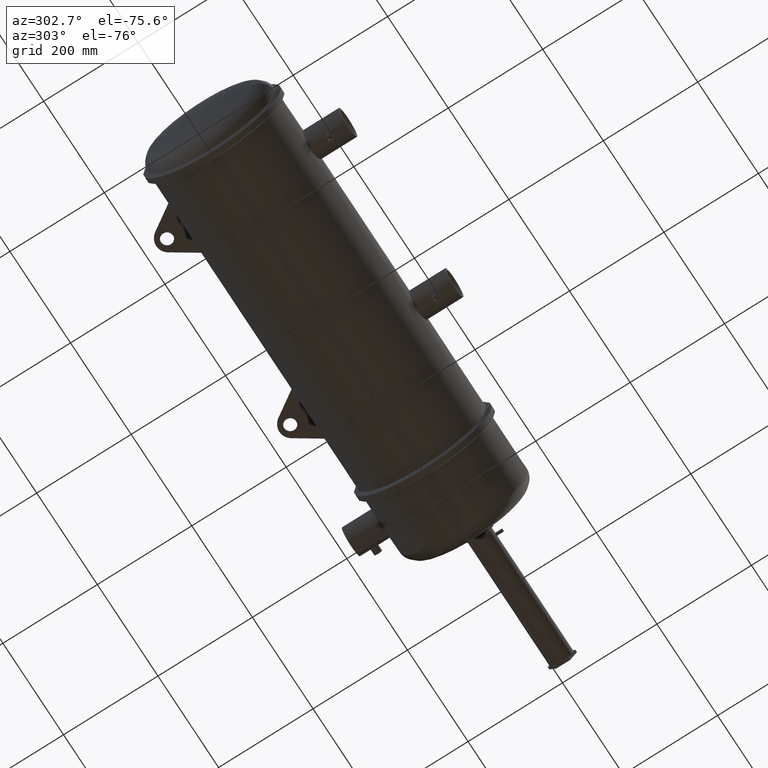
[diagram: clean part render]
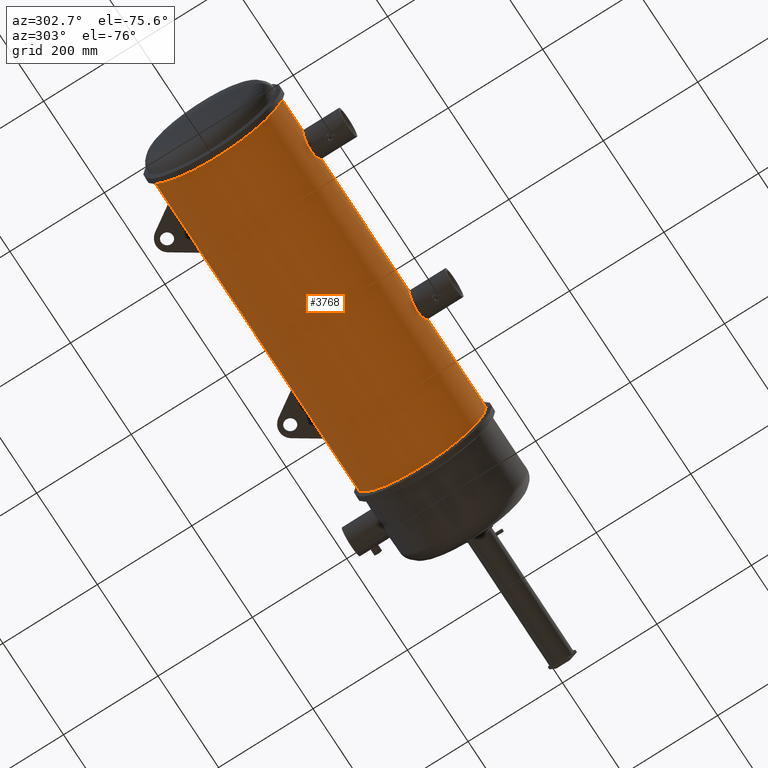
[diagram: same view with one face highlighted and labeled with its STEP entity id]
A machine part, auxiliary view. The second image highlights one B-rep face of the part: STEP entity #3768.
In plain terms, the highlighted cylindrical surface (partial cylindrical patch) has radius 136.439 mm, axis along (-1, 0, -0).
Its self-contained STEP definition (entity closure, byte-faithful):
#18 = CARTESIAN_POINT ( 'NONE',  ( 20.30267497385542400, -5.234978669850942600, -1.189228997308080100 ) ) ;
#26 = CARTESIAN_POINT ( 'NONE',  ( 5.330196405922591500, -5.330878267354915300, -0.6333811406929402700 ) ) ;
#42 = CARTESIAN_POINT ( 'NONE',  ( 6.035303101817143900, -5.241893412274290400, -1.158349098115867300 ) ) ;
#49 = DIRECTION ( 'NONE',  ( -1.000000000000000000, 1.127465836012422800E-020, -0.0000000000000000000 ) ) ;
#68 = VERTEX_POINT ( 'NONE', #412 ) ;
#69 = CARTESIAN_POINT ( 'NONE',  ( 4.463327892451215600, 5.374515423986700600, -0.08333991581731926800 ) ) ;
#153 = EDGE_CURVE ( 'NONE', #2178, #293, #2804, .T. ) ;
#167 = EDGE_CURVE ( 'NONE', #4083, #768, #3010, .T. ) ;
#203 = DIRECTION ( 'NONE',  ( 1.000000000000000000, -1.127465836012422800E-020, 0.0000000000000000000 ) ) ;
#293 = VERTEX_POINT ( 'NONE', #2851 ) ;
#294 = CARTESIAN_POINT ( 'NONE',  ( 19.76021090589704300, -5.246946594997296200, -1.135533866001857500 ) ) ;
#346 = CARTESIAN_POINT ( 'NONE',  ( 7.543312173937977100, -5.368251035232423100, -0.07934689548169746000 ) ) ;
#351 = CARTESIAN_POINT ( 'NONE',  ( 19.05636493610958100, -5.345471468201791900, -0.4944962946352758300 ) ) ;
#352 = CARTESIAN_POINT ( 'NONE',  ( 20.46364765338795200, 5.375000311993521700, 6.578344187407872600E-016 ) ) ;
#367 = CARTESIAN_POINT ( 'NONE',  ( 7.330533132380652200, -5.324870300496106000, -0.6814954920612604800 ) ) ;
#388 = CARTESIAN_POINT ( 'NONE',  ( 6.928274349975794200, -5.265413086649696000, -1.046100671700776400 ) ) ;
#412 = CARTESIAN_POINT ( 'NONE',  ( 24.71122289108931700, 5.375000311993521700, 6.578344187407872600E-016 ) ) ;
#418 = CARTESIAN_POINT ( 'NONE',  ( 21.13042735282109100, -5.324850754475957800, -0.6816483619526521000 ) ) ;
#422 = CARTESIAN_POINT ( 'NONE',  ( 5.310052556258611400, -5.334763962846635900, -0.5998794478264059000 ) ) ;
#434 = CARTESIAN_POINT ( 'NONE',  ( 20.87717697342599600, -5.283556944324895500, -0.9511561901910999800 ) ) ;
#439 = CARTESIAN_POINT ( 'NONE',  ( 5.557303486307052500, -5.292328878397583500, -0.9000362016154684900 ) ) ;
#441 = ORIENTED_EDGE ( 'NONE', *, *, #4150, .F. ) ;
#448 = VECTOR ( 'NONE', #4394, 39.37007874015748100 ) ;
#455 = CARTESIAN_POINT ( 'NONE',  ( 20.41869885264316100, -5.240255615862095900, -1.165645067144453200 ) ) ;
#487 = CARTESIAN_POINT ( 'NONE',  ( 4.463647653387963200, 5.375000311993521700, -0.04167136849551293000 ) ) ;
#491 = EDGE_CURVE ( 'NONE', #2388, #2630, #1920, .T. ) ;
#520 = CARTESIAN_POINT ( 'NONE',  ( 4.462688413873690900, 5.373545713627409600, -0.1250000000000000000 ) ) ;
#551 = CARTESIAN_POINT ( 'NONE',  ( 19.24435893855343600, -5.310070421630567400, -0.7904605361409938700 ) ) ;
#604 = B_SPLINE_CURVE_WITH_KNOTS ( 'NONE', 3,
 ( #2949, #3532, #818, #3985, #3492, #1266, #4900, #5370, #2656, #5829, #3119, #418, #1768, #4923, #2219, #5390, #783, #2692, #434, #883, #3592, #4041, #2239, #1790, #1341, #4060, #4491, #4945, #1323, #455, #5410, #18, #3157, #3612 ),
 .UNSPECIFIED., .F., .F.,
 ( 4, 2, 2, 2, 2, 2, 2, 2, 2, 2, 2, 2, 2, 2, 2, 2, 4 ),
 ( 0.0000000000000000000, 0.005960542230142185800, 0.008940813345213278700, 0.01043094890274887300, 0.01192108446028446700, 0.01788162669042668900, 0.01937176224796216200, 0.02086189780549763500, 0.02384216892056879900, 0.02980271115071111600, 0.03129284670824676600, 0.03278298226578241200, 0.03576325338085398200, 0.03874352449592555900, 0.04023366005346150400, 0.04172379561099744800, 0.04768433784114122600 ),
 .UNSPECIFIED. ) ;
#698 = DIRECTION ( 'NONE',  ( -1.000000000000000000, 1.127465836012422800E-020, -0.0000000000000000000 ) ) ;
#699 = AXIS2_PLACEMENT_3D ( 'NONE', #3014, #4775, #1647 ) ;
#756 = CARTESIAN_POINT ( 'NONE',  ( 20.46268841387367500, 5.373545713627407800, -0.1250000000000000000 ) ) ;
#766 = CARTESIAN_POINT ( 'NONE',  ( 21.34331217393797400, -5.368251035232424900, 0.0000000000000000000 ) ) ;
#768 = VERTEX_POINT ( 'NONE', #766 ) ;
#772 = CARTESIAN_POINT ( 'NONE',  ( 7.384828232467805600, -5.335004838788244700, -0.6002937999885240600 ) ) ;
#776 = CARTESIAN_POINT ( 'NONE',  ( 18.95152418166476600, -5.367823839679644500, -0.07830686946688783500 ) ) ;
#783 = CARTESIAN_POINT ( 'NONE',  ( 21.01989131365047600, -5.305490786052706300, -0.8191983656207001400 ) ) ;
#794 = EDGE_CURVE ( 'NONE', #2629, #5117, #1721, .T. ) ;
#795 = VECTOR ( 'NONE', #203, 39.37007874015748100 ) ;
#807 = CARTESIAN_POINT ( 'NONE',  ( 7.295845346061221400, -5.318571258674511500, -0.7290455716052651700 ) ) ;
#818 = CARTESIAN_POINT ( 'NONE',  ( 21.33549608641648000, -5.366494215406592400, -0.1573589102271542600 ) ) ;
#837 = EDGE_CURVE ( 'NONE', #768, #4770, #604, .T. ) ;
#883 = CARTESIAN_POINT ( 'NONE',  ( 20.79541310023561700, -5.273251761401556200, -1.005833010294777500 ) ) ;
#888 = LINE ( 'NONE', #3251, #5182 ) ;
#889 = CARTESIAN_POINT ( 'NONE',  ( 5.572120595253932300, -5.290139581269365000, -0.9128130151573573500 ) ) ;
#896 = VERTEX_POINT ( 'NONE', #5323 ) ;
#910 = CARTESIAN_POINT ( 'NONE',  ( 5.528220568262485200, -5.296740794863462800, -0.8736803168913048800 ) ) ;
#916 = CARTESIAN_POINT ( 'NONE',  ( 24.71122289108932100, 5.375000311993521700, -0.04167136849551387300 ) ) ;
#926 = CARTESIAN_POINT ( 'NONE',  ( 5.149611386536401300, -5.368251035232424900, 3.934038153631442900E-022 ) ) ;
#951 = CARTESIAN_POINT ( 'NONE',  ( 24.71122289108931700, 5.375000311993521700, 6.578344187407872600E-016 ) ) ;
#979 = ORIENTED_EDGE ( 'NONE', *, *, #4447, .T. ) ;
#1000 = EDGE_LOOP ( 'NONE', ( #441, #1827, #3459, #4711, #1696, #5780, #2126, #2956, #5636, #3528, #4389, #3077, #4613, #1238, #1557, #1744, #979 ) ) ;
#1043 = CARTESIAN_POINT ( 'NONE',  ( -0.0007269337269812082200, 5.375000311993521700, 6.578344187407872600E-016 ) ) ;
#1145 = CARTESIAN_POINT ( 'NONE',  ( 20.46364765338795500, 5.375000311993521700, -0.04167136849551293000 ) ) ;
#1147 = CARTESIAN_POINT ( 'NONE',  ( -0.0007269337269812082200, -5.368251035232424900, 0.0000000000000000000 ) ) ;
#1198 = CARTESIAN_POINT ( 'NONE',  ( 7.246288631352057600, -5.309910324303571000, -0.7901296684950678300 ) ) ;
#1208 = VERTEX_POINT ( 'NONE', #5467 ) ;
#1215 = CARTESIAN_POINT ( 'NONE',  ( 6.503113652984581900, -5.234992094269812500, -1.189170192166948200 ) ) ;
#1219 = CARTESIAN_POINT ( 'NONE',  ( 20.46332789245120100, 5.374515423986700600, -0.08333991581731926800 ) ) ;
#1224 = EDGE_CURVE ( 'NONE', #2630, #5117, #888, .T. ) ;
#1232 = CARTESIAN_POINT ( 'NONE',  ( 7.479666009584057900, -5.354425361592081600, -0.3856020242841821100 ) ) ;
#1238 = ORIENTED_EDGE ( 'NONE', *, *, #5369, .F. ) ;
#1266 = CARTESIAN_POINT ( 'NONE',  ( 21.28585846822836900, -5.355739564668230200, -0.3668973219569238200 ) ) ;
#1267 = VECTOR ( 'NONE', #2277, 39.37007874015748100 ) ;
#1274 = CARTESIAN_POINT ( 'NONE',  ( 19.01093943163520100, -5.354839818819743700, -0.3862169381962458100 ) ) ;
#1291 = CARTESIAN_POINT ( 'NONE',  ( 5.188244770120950200, -5.359754341280182500, -0.3116865172574833600 ) ) ;
#1320 =( BOUNDED_CURVE ( )  B_SPLINE_CURVE ( 3, ( #3621, #3670, #916, #951 ),
 .UNSPECIFIED., .F., .T. ) 
 B_SPLINE_CURVE_WITH_KNOTS ( ( 4, 4 ),
 ( 6.259912783765306800, 6.283185307179586200 ),
 .UNSPECIFIED. ) 
 CURVE ( )  GEOMETRIC_REPRESENTATION_ITEM ( )  RATIONAL_B_SPLINE_CURVE ( ( 1.000000000000000000, 0.9999548663137659600, 0.9999548663137659600, 1.000000000000000000 ) ) 
 REPRESENTATION_ITEM ( '' )  );
#1323 = CARTESIAN_POINT ( 'NONE',  ( 20.45703563367988000, -5.242385681921823500, -1.156021335317012600 ) ) ;
#1341 = CARTESIAN_POINT ( 'NONE',  ( 20.64106441455124900, -5.256402689435967400, -1.090567589013728100 ) ) ;
#1348 = CARTESIAN_POINT ( 'NONE',  ( 5.248462234067474700, -5.347088957357647700, -0.4766873121286585000 ) ) ;
#1368 = CARTESIAN_POINT ( 'NONE',  ( 6.150579962376228100, -5.236740591361238400, -1.181362159193052300 ) ) ;
#1390 = EDGE_CURVE ( 'NONE', #293, #2629, #4184, .T. ) ;
#1520 = CARTESIAN_POINT ( 'NONE',  ( 28.97085687440993600, 0.003374638380548246200, 0.0000000000000000000 ) ) ;
#1522 = EDGE_CURVE ( 'NONE', #4770, #2086, #5421, .T. ) ;
#1557 = ORIENTED_EDGE ( 'NONE', *, *, #4302, .F. ) ;
#1572 = CARTESIAN_POINT ( 'NONE',  ( 19.51307509756091100, -5.271287589341906900, -1.016260606991168800 ) ) ;
#1591 = CARTESIAN_POINT ( 'NONE',  ( 19.41716552774270700, -5.283674949358619700, -0.9497900515618491500 ) ) ;
#1602 = CARTESIAN_POINT ( 'NONE',  ( 8.711222891089402500, 5.375000311993521700, 6.578344187407872600E-016 ) ) ;
#1638 = CARTESIAN_POINT ( 'NONE',  ( 20.06801248151462100, -5.233658162437841100, -1.194933398930100800 ) ) ;
#1646 = DIRECTION ( 'NONE',  ( 0.0000000000000000000, -1.000000000000000000, 0.0000000000000000000 ) ) ;
#1647 = DIRECTION ( 'NONE',  ( 0.0000000000000000000, -1.000000000000000000, 0.0000000000000000000 ) ) ;
#1669 = CARTESIAN_POINT ( 'NONE',  ( 6.425283791369471600, -5.233226109835778000, -1.196818692304399500 ) ) ;
#1689 = CARTESIAN_POINT ( 'NONE',  ( 7.466329588371038100, -5.351620499058100200, -0.4227727981400554700 ) ) ;
#1691 = CARTESIAN_POINT ( 'NONE',  ( 18.94961138653640700, -5.368251035232424900, -0.03911604213774359100 ) ) ;
#1696 = ORIENTED_EDGE ( 'NONE', *, *, #1522, .T. ) ;
#1710 = CARTESIAN_POINT ( 'NONE',  ( 7.543312173937975400, -5.368251035232424900, 1.465719003703918300E-016 ) ) ;
#1721 = CIRCLE ( 'NONE', #2726, 5.371625673612972400 ) ;
#1730 = CARTESIAN_POINT ( 'NONE',  ( 6.676386424616644900, -5.243568401020945100, -1.150645613712213900 ) ) ;
#1744 = ORIENTED_EDGE ( 'NONE', *, *, #4407, .T. ) ;
#1768 = CARTESIAN_POINT ( 'NONE',  ( 21.11914342736664800, -5.322776732833550500, -0.6976583898845124500 ) ) ;
#1774 = CARTESIAN_POINT ( 'NONE',  ( 5.282177727336020600, -5.340269164422731600, -0.5478480275447394900 ) ) ;
#1790 = CARTESIAN_POINT ( 'NONE',  ( 20.67629453886113200, -5.259843027890381600, -1.073897246922515000 ) ) ;
#1809 = CARTESIAN_POINT ( 'NONE',  ( 5.149611386536401300, -5.368251035232424900, -0.03912608999162642300 ) ) ;
#1821 = VERTEX_POINT ( 'NONE', #4015 ) ;
#1827 = ORIENTED_EDGE ( 'NONE', *, *, #2270, .T. ) ;
#1903 = LINE ( 'NONE', #2762, #1267 ) ;
#1920 = B_SPLINE_CURVE_WITH_KNOTS ( 'NONE', 3,
 ( #1710, #346, #2563, #3953, #2124, #3474, #1232, #1689, #2146, #5310, #772, #367, #5772, #807, #3972, #1198, #4801, #4349, #2105, #5329, #2618, #3932, #388, #3990, #3540, #3561, #4433, #1730, #4885, #2186, #5351, #1215, #1669, #5812, #4371, #2581, #1368, #42, #5378, #4969, #5399, #5835, #3599, #2207, #3650, #889, #439, #910, #4930, #4455, #3578, #26, #422, #1774, #3143, #4064, #1348, #4516, #1291, #2661, #4011, #3164, #5418, #2264, #1809, #5440 ),
 .UNSPECIFIED., .F., .F.,
 ( 4, 2, 2, 2, 2, 2, 2, 2, 2, 2, 2, 2, 2, 2, 2, 2, 2, 2, 2, 2, 2, 2, 2, 2, 2, 2, 2, 2, 2, 2, 2, 2, 4 ),
 ( 9.081084863446127100E-019, 0.005959011914156255200, 0.008938517871234383200, 0.01042827084977342700, 0.01191802382831247200, 0.01787703574246863500, 0.01936678872100770100, 0.02085654169954676700, 0.02383604765662495100, 0.02979505957078132700, 0.03128481254932038300, 0.03277456552785944200, 0.03575407148493763700, 0.03873357744201583200, 0.04022333042055493300, 0.04171308339909402700, 0.04767209531325047900, 0.05065160127032871500, 0.05363110722740694500, 0.05959011914156340400, 0.06256962509864159900, 0.06554913105571978600, 0.06852863701279797400, 0.07001838999133706800, 0.07150814296987616200, 0.07746715488403244100, 0.08044666084111057300, 0.08193641381964965300, 0.08342616679818873300, 0.08938517871234509500, 0.09087493169088417500, 0.09236468466942325500, 0.09534419062650142900 ),
 .UNSPECIFIED. ) ;
#2037 = DIRECTION ( 'NONE',  ( -1.000000000000000000, 1.127465836012422800E-020, -0.0000000000000000000 ) ) ;
#2081 = CARTESIAN_POINT ( 'NONE',  ( 8.712182130583267200, 5.373545713627409600, -0.1250000000000000000 ) ) ;
#2086 = VERTEX_POINT ( 'NONE', #4138 ) ;
#2088 = CARTESIAN_POINT ( 'NONE',  ( 19.54648424587479000, -5.267366008970259200, -1.036345248274298100 ) ) ;
#2105 = CARTESIAN_POINT ( 'NONE',  ( 7.077398360126166700, -5.283587923044563300, -0.9509841386599923200 ) ) ;
#2124 = CARTESIAN_POINT ( 'NONE',  ( 7.503055102978485100, -5.359413313879632500, -0.3103100000100546500 ) ) ;
#2126 = ORIENTED_EDGE ( 'NONE', *, *, #491, .T. ) ;
#2129 = CARTESIAN_POINT ( 'NONE',  ( 19.07320183839928200, -5.342065516094848500, -0.5300479338994725800 ) ) ;
#2146 = CARTESIAN_POINT ( 'NONE',  ( 7.459229800459154600, -5.350139161522927000, -0.4411151457763410300 ) ) ;
#2178 = VERTEX_POINT ( 'NONE', #5661 ) ;
#2186 = CARTESIAN_POINT ( 'NONE',  ( 6.619105157808161400, -5.240276754357466000, -1.165549993824774600 ) ) ;
#2207 = CARTESIAN_POINT ( 'NONE',  ( 5.648651001258712300, -5.279410793121416900, -0.9731522073378949800 ) ) ;
#2211 = CARTESIAN_POINT ( 'NONE',  ( 18.98822515567900700, -5.359758598444634500, -0.3116086568080097500 ) ) ;
#2219 = CARTESIAN_POINT ( 'NONE',  ( 21.08355692608841600, -5.316391145387439300, -0.7447746826625419900 ) ) ;
#2239 = CARTESIAN_POINT ( 'NONE',  ( 20.72798897783316700, -5.265381560053755000, -1.046259422608541800 ) ) ;
#2264 = CARTESIAN_POINT ( 'NONE',  ( 5.151525161940515600, -5.367823620218493000, -0.07832700350516676200 ) ) ;
#2270 = EDGE_CURVE ( 'NONE', #896, #4083, #2494, .T. ) ;
#2277 = DIRECTION ( 'NONE',  ( -1.000000000000000000, 1.127465836012422800E-020, -0.0000000000000000000 ) ) ;
#2315 = CARTESIAN_POINT ( 'NONE',  ( 2.329100979084119100, 5.375000311993520800, 6.578344187407871700E-016 ) ) ;
#2381 = VERTEX_POINT ( 'NONE', #4325 ) ;
#2388 = VERTEX_POINT ( 'NONE', #2972 ) ;
#2445 = DIRECTION ( 'NONE',  ( -1.000000000000000000, 1.127465836012422800E-020, -0.0000000000000000000 ) ) ;
#2483 = VERTEX_POINT ( 'NONE', #2637 ) ;
#2494 = CIRCLE ( 'NONE', #3707, 5.371625673612975000 ) ;
#2543 = CARTESIAN_POINT ( 'NONE',  ( 19.44841570691389900, -5.279441963324682500, -0.9729830371757065600 ) ) ;
#2555 = CARTESIAN_POINT ( 'NONE',  ( 2.329100979084119100, 0.003374638380548247100, 0.0000000000000000000 ) ) ;
#2563 = CARTESIAN_POINT ( 'NONE',  ( 7.535500060682035300, -5.366495116580428400, -0.1573188563096031300 ) ) ;
#2581 = CARTESIAN_POINT ( 'NONE',  ( 6.189616551030661100, -5.235418921864877900, -1.187190086097584800 ) ) ;
#2618 = CARTESIAN_POINT ( 'NONE',  ( 6.978983823797220200, -5.271254825869855900, -1.016244206724164200 ) ) ;
#2629 = VERTEX_POINT ( 'NONE', #2315 ) ;
#2630 = VERTEX_POINT ( 'NONE', #926 ) ;
#2637 = CARTESIAN_POINT ( 'NONE',  ( 8.711222891089402500, 5.375000311993521700, 6.578344187407872600E-016 ) ) ;
#2656 = CARTESIAN_POINT ( 'NONE',  ( 21.25918710163650300, -5.350130281458850100, -0.4412230569833939200 ) ) ;
#2661 = CARTESIAN_POINT ( 'NONE',  ( 5.168999668700369200, -5.363963103015171500, -0.2154509392258397200 ) ) ;
#2666 = CARTESIAN_POINT ( 'NONE',  ( 18.94961138653640000, -5.368251035232424900, 3.934107722467178800E-022 ) ) ;
#2692 = CARTESIAN_POINT ( 'NONE',  ( 20.93730464228196200, -5.292320752643710200, -0.9017069485949358300 ) ) ;
#2726 = AXIS2_PLACEMENT_3D ( 'NONE', #2555, #2037, #1646 ) ;
#2757 = EDGE_CURVE ( 'NONE', #2178, #2381, #3629, .T. ) ;
#2762 = CARTESIAN_POINT ( 'NONE',  ( -0.0007269337269812082200, 5.375000311993521700, 6.578344187407872600E-016 ) ) ;
#2789 = EDGE_CURVE ( 'NONE', #2086, #2388, #2834, .T. ) ;
#2804 =( BOUNDED_CURVE ( )  B_SPLINE_CURVE ( 3, ( #520, #69, #487, #4141 ),
 .UNSPECIFIED., .F., .T. ) 
 B_SPLINE_CURVE_WITH_KNOTS ( ( 4, 4 ),
 ( 3.118320130175514600, 3.141592653589793100 ),
 .UNSPECIFIED. ) 
 CURVE ( )  GEOMETRIC_REPRESENTATION_ITEM ( )  RATIONAL_B_SPLINE_CURVE ( ( 1.000000000000000000, 0.9999548663137659600, 0.9999548663137659600, 1.000000000000000000 ) ) 
 REPRESENTATION_ITEM ( '' )  );
#2834 = LINE ( 'NONE', #1147, #5749 ) ;
#2851 = CARTESIAN_POINT ( 'NONE',  ( 4.463647653387963200, 5.375000311993521700, 6.578344187407872600E-016 ) ) ;
#2949 = CARTESIAN_POINT ( 'NONE',  ( 21.34331217393797400, -5.368251035232424900, 0.0000000000000000000 ) ) ;
#2956 = ORIENTED_EDGE ( 'NONE', *, *, #1224, .T. ) ;
#2962 = CARTESIAN_POINT ( 'NONE',  ( 19.35710690807780700, -5.292358192463242800, -0.8998637049342547200 ) ) ;
#2972 = CARTESIAN_POINT ( 'NONE',  ( 7.543312173937975400, -5.368251035232424900, 1.465719003703918300E-016 ) ) ;
#3010 = LINE ( 'NONE', #5478, #3294 ) ;
#3014 = CARTESIAN_POINT ( 'NONE',  ( -0.0007269337269812082200, 0.003374638380548247100, 0.0000000000000000000 ) ) ;
#3045 = CARTESIAN_POINT ( 'NONE',  ( 19.08211054547587800, -5.340282552703311800, -0.5477173289310224300 ) ) ;
#3067 = CARTESIAN_POINT ( 'NONE',  ( 19.04841221474868000, -5.347099227463210100, -0.4765718681858188700 ) ) ;
#3077 = ORIENTED_EDGE ( 'NONE', *, *, #2757, .T. ) ;
#3119 = CARTESIAN_POINT ( 'NONE',  ( 21.18474932990761400, -5.334989321941430200, -0.6004330010940928100 ) ) ;
#3136 = LINE ( 'NONE', #5776, #448 ) ;
#3143 = CARTESIAN_POINT ( 'NONE',  ( 5.273264550519362700, -5.342052918527757700, -0.5301750953483459500 ) ) ;
#3157 = CARTESIAN_POINT ( 'NONE',  ( 20.22482318247096300, -5.233218864319112200, -1.196850393700786800 ) ) ;
#3164 = CARTESIAN_POINT ( 'NONE',  ( 5.159783376257468700, -5.365993021232117900, -0.1569581605859729500 ) ) ;
#3251 = CARTESIAN_POINT ( 'NONE',  ( -0.0007269337269812082200, -5.368251035232424900, 0.0000000000000000000 ) ) ;
#3294 = VECTOR ( 'NONE', #49, 39.37007874015748100 ) ;
#3459 = ORIENTED_EDGE ( 'NONE', *, *, #167, .T. ) ;
#3474 = CARTESIAN_POINT ( 'NONE',  ( 7.485887878400715700, -5.355745820634874500, -0.3668056952654098500 ) ) ;
#3485 = CYLINDRICAL_SURFACE ( 'NONE', #699, 5.371625673612973300 ) ;
#3492 = CARTESIAN_POINT ( 'NONE',  ( 21.30303455708512300, -5.359408870717360600, -0.3103878976485539600 ) ) ;
#3528 = ORIENTED_EDGE ( 'NONE', *, *, #1390, .F. ) ;
#3532 = CARTESIAN_POINT ( 'NONE',  ( 21.34331217393797800, -5.368251035232424900, -0.07936727232006743300 ) ) ;
#3540 = CARTESIAN_POINT ( 'NONE',  ( 6.841383117033452700, -5.256432764304712200, -1.090422626216988500 ) ) ;
#3561 = CARTESIAN_POINT ( 'NONE',  ( 6.769422106921013000, -5.250150104273184400, -1.120300493364913200 ) ) ;
#3578 = CARTESIAN_POINT ( 'NONE',  ( 5.395172175443452300, -5.318753918870347900, -0.7304542523466572800 ) ) ;
#3592 = CARTESIAN_POINT ( 'NONE',  ( 20.77871780649118700, -5.271222911714966500, -1.016409814980364900 ) ) ;
#3599 = CARTESIAN_POINT ( 'NONE',  ( 5.713338123550171200, -5.271255926567825200, -1.016424880278136600 ) ) ;
#3612 = CARTESIAN_POINT ( 'NONE',  ( 20.14646178023718900, -5.233218864319113100, -1.196850393700786800 ) ) ;
#3621 = CARTESIAN_POINT ( 'NONE',  ( 24.71218213058318000, 5.373545713627409600, -0.1250000000000000000 ) ) ;
#3629 = LINE ( 'NONE', #5616, #795 ) ;
#3650 = CARTESIAN_POINT ( 'NONE',  ( 5.617387536895210900, -5.283644257580954600, -0.9499608616137269500 ) ) ;
#3670 = CARTESIAN_POINT ( 'NONE',  ( 24.71154265201926100, 5.374515423986700600, -0.08333991581732315400 ) ) ;
#3673 = DIRECTION ( 'NONE',  ( -1.000000000000000000, 1.127465836012422800E-020, -0.0000000000000000000 ) ) ;
#3685 = CARTESIAN_POINT ( 'NONE',  ( 19.31374377405998600, -5.298996824002549600, -0.8598935953327427900 ) ) ;
#3707 = AXIS2_PLACEMENT_3D ( 'NONE', #1520, #3799, #4672 ) ;
#3768 = ADVANCED_FACE ( 'NONE', ( #4802 ), #3485, .T. ) ;
#3775 = EDGE_CURVE ( 'NONE', #2381, #2483, #4212, .T. ) ;
#3799 = DIRECTION ( 'NONE',  ( -1.000000000000000000, 1.127465836012422800E-020, -0.0000000000000000000 ) ) ;
#3889 = CARTESIAN_POINT ( 'NONE',  ( 19.65133595309736600, -5.256449887972070900, -1.090341821937880200 ) ) ;
#3932 = CARTESIAN_POINT ( 'NONE',  ( 6.945307191858846700, -5.267322438531522300, -1.036446137659587000 ) ) ;
#3948 = CARTESIAN_POINT ( 'NONE',  ( 8.711222891089406100, 5.375000311993521700, -0.04167136849551386600 ) ) ;
#3953 = CARTESIAN_POINT ( 'NONE',  ( 7.512577468871281600, -5.361481531349087800, -0.2723098660096218700 ) ) ;
#3972 = CARTESIAN_POINT ( 'NONE',  ( 7.283685832569175600, -5.316413866986115600, -0.7446123408610413300 ) ) ;
#3985 = CARTESIAN_POINT ( 'NONE',  ( 21.31256179371867500, -5.361478118893338700, -0.2723784301474028200 ) ) ;
#3990 = CARTESIAN_POINT ( 'NONE',  ( 6.876599697019065300, -5.259873842715046000, -1.073746301991121500 ) ) ;
#3992 = CARTESIAN_POINT ( 'NONE',  ( 19.13010654061383800, -5.330895429367436700, -0.6332363340340045900 ) ) ;
#4011 = CARTESIAN_POINT ( 'NONE',  ( 5.165612935563335600, -5.364707647090692300, -0.1960548511993878700 ) ) ;
#4015 = CARTESIAN_POINT ( 'NONE',  ( 20.46268841387367500, 5.373545713627407800, -0.1250000000000000000 ) ) ;
#4041 = CARTESIAN_POINT ( 'NONE',  ( 20.74502832632043000, -5.267290741135510300, -1.036607295282497400 ) ) ;
#4060 = CARTESIAN_POINT ( 'NONE',  ( 20.56907548248298000, -5.250122112705162700, -1.120431653761947900 ) ) ;
#4061 = VECTOR ( 'NONE', #4195, 39.37007874015748100 ) ;
#4064 = CARTESIAN_POINT ( 'NONE',  ( 5.256419012451774000, -5.345460441137418300, -0.4946156993063972600 ) ) ;
#4083 = VERTEX_POINT ( 'NONE', #4663 ) ;
#4113 = VECTOR ( 'NONE', #2445, 39.37007874015748100 ) ;
#4138 = CARTESIAN_POINT ( 'NONE',  ( 18.94961138653640000, -5.368251035232424900, 3.934107722467178800E-022 ) ) ;
#4141 = CARTESIAN_POINT ( 'NONE',  ( 4.463647653387963200, 5.375000311993521700, 6.578344187407872600E-016 ) ) ;
#4150 = EDGE_CURVE ( 'NONE', #896, #68, #5317, .T. ) ;
#4184 = LINE ( 'NONE', #1043, #4061 ) ;
#4195 = DIRECTION ( 'NONE',  ( -1.000000000000000000, 1.127465836012422800E-020, -0.0000000000000000000 ) ) ;
#4212 =( BOUNDED_CURVE ( )  B_SPLINE_CURVE ( 3, ( #2081, #5703, #3948, #1602 ),
 .UNSPECIFIED., .F., .F. ) 
 B_SPLINE_CURVE_WITH_KNOTS ( ( 4, 4 ),
 ( 6.259912783765306800, 6.283185307179586200 ),
 .UNSPECIFIED. ) 
 CURVE ( )  GEOMETRIC_REPRESENTATION_ITEM ( )  RATIONAL_B_SPLINE_CURVE ( ( 1.000000000000000000, 0.9999548663137659600, 0.9999548663137659600, 1.000000000000000000 ) ) 
 REPRESENTATION_ITEM ( '' )  );
#4302 = EDGE_CURVE ( 'NONE', #1821, #4361, #5198, .T. ) ;
#4325 = CARTESIAN_POINT ( 'NONE',  ( 8.712182130583267200, 5.373545713627409600, -0.1250000000000000000 ) ) ;
#4349 = CARTESIAN_POINT ( 'NONE',  ( 7.137498906476444900, -5.292350019524340300, -0.9015348683468306100 ) ) ;
#4361 = VERTEX_POINT ( 'NONE', #352 ) ;
#4371 = CARTESIAN_POINT ( 'NONE',  ( 6.268477259244522600, -5.233651151746758300, -1.194964075166606600 ) ) ;
#4389 = ORIENTED_EDGE ( 'NONE', *, *, #153, .F. ) ;
#4394 = DIRECTION ( 'NONE',  ( 1.000000000000000000, -1.127465836012422800E-020, 0.0000000000000000000 ) ) ;
#4407 = EDGE_CURVE ( 'NONE', #1821, #1208, #3136, .T. ) ;
#4433 = CARTESIAN_POINT ( 'NONE',  ( 6.732677723251321700, -5.247308380818837200, -1.133502116430655600 ) ) ;
#4437 = CARTESIAN_POINT ( 'NONE',  ( 18.96898974731094600, -5.363965280857788900, -0.2153962618374095100 ) ) ;
#4447 = EDGE_CURVE ( 'NONE', #1208, #68, #1320, .T. ) ;
#4455 = CARTESIAN_POINT ( 'NONE',  ( 5.444502925859156400, -5.310045698513225600, -0.7906270637724923700 ) ) ;
#4491 = CARTESIAN_POINT ( 'NONE',  ( 20.53231672190699400, -5.247281732394174700, -1.133625458229323000 ) ) ;
#4516 = CARTESIAN_POINT ( 'NONE',  ( 5.210970401282820900, -5.354833173829468300, -0.3863121868745463300 ) ) ;
#4613 = ORIENTED_EDGE ( 'NONE', *, *, #3775, .T. ) ;
#4663 = CARTESIAN_POINT ( 'NONE',  ( 28.97085687440993600, -5.368251035232426600, 0.0000000000000000000 ) ) ;
#4672 = DIRECTION ( 'NONE',  ( 0.0000000000000000000, -1.000000000000000000, 0.0000000000000000000 ) ) ;
#4702 = CARTESIAN_POINT ( 'NONE',  ( 20.10730119771050900, -5.233218864319110400, -1.196850393700786800 ) ) ;
#4711 = ORIENTED_EDGE ( 'NONE', *, *, #837, .T. ) ;
#4720 = CARTESIAN_POINT ( 'NONE',  ( 19.32803627448875600, -5.296769266263416900, -0.8735075805052844300 ) ) ;
#4770 = VERTEX_POINT ( 'NONE', #5374 ) ;
#4775 = DIRECTION ( 'NONE',  ( -1.000000000000000000, 1.127465836012422800E-020, -0.0000000000000000000 ) ) ;
#4786 = CARTESIAN_POINT ( 'NONE',  ( 19.61551506720887900, -5.259954948674781000, -1.073349944465799900 ) ) ;
#4801 = CARTESIAN_POINT ( 'NONE',  ( 7.220048597928084200, -5.305516728161413700, -0.8190301790022720400 ) ) ;
#4802 = FACE_OUTER_BOUND ( 'NONE', #1000, .T. ) ;
#4823 = CARTESIAN_POINT ( 'NONE',  ( 18.96560472352917500, -5.364709454309174700, -0.1960048841082148700 ) ) ;
#4885 = CARTESIAN_POINT ( 'NONE',  ( 6.657426523269539800, -5.242408867316117800, -1.155916142299719100 ) ) ;
#4900 = CARTESIAN_POINT ( 'NONE',  ( 21.27963330961678100, -5.354418441567494500, -0.3856983536690556900 ) ) ;
#4910 = CARTESIAN_POINT ( 'NONE',  ( 18.95977811632868900, -5.365994184488546800, -0.1569177643993113500 ) ) ;
#4922 = CARTESIAN_POINT ( 'NONE',  ( 2.329100979084119100, -5.368251035232423100, 0.0000000000000000000 ) ) ;
#4923 = CARTESIAN_POINT ( 'NONE',  ( 21.09572224758605700, -5.318549287916665600, -0.7292059933704290200 ) ) ;
#4930 = CARTESIAN_POINT ( 'NONE',  ( 5.513921679096928800, -5.298968870091533400, -0.8600659706666467000 ) ) ;
#4945 = CARTESIAN_POINT ( 'NONE',  ( 20.47600310192553500, -5.243544285051934900, -1.150755553914627000 ) ) ;
#4969 = CARTESIAN_POINT ( 'NONE',  ( 5.851658948355673600, -5.256419405276241200, -1.090488751025077400 ) ) ;
#5097 = CARTESIAN_POINT ( 'NONE',  ( 20.14646178023718900, -5.233218864319113100, -1.196850393700786800 ) ) ;
#5117 = VERTEX_POINT ( 'NONE', #4922 ) ;
#5182 = VECTOR ( 'NONE', #3673, 39.37007874015748100 ) ;
#5189 = CARTESIAN_POINT ( 'NONE',  ( 19.83491609496021000, -5.241916789384197800, -1.158243551902780300 ) ) ;
#5198 =( BOUNDED_CURVE ( )  B_SPLINE_CURVE ( 3, ( #756, #1219, #1145, #5817 ),
 .UNSPECIFIED., .F., .T. ) 
 B_SPLINE_CURVE_WITH_KNOTS ( ( 4, 4 ),
 ( 3.118320130175514600, 3.141592653589793100 ),
 .UNSPECIFIED. ) 
 CURVE ( )  GEOMETRIC_REPRESENTATION_ITEM ( )  RATIONAL_B_SPLINE_CURVE ( ( 1.000000000000000000, 0.9999548663137659600, 0.9999548663137659600, 1.000000000000000000 ) ) 
 REPRESENTATION_ITEM ( '' )  );
#5214 = CARTESIAN_POINT ( 'NONE',  ( 19.98916997773342900, -5.235432379969383400, -1.187130746469748300 ) ) ;
#5310 = CARTESIAN_POINT ( 'NONE',  ( 7.421617679186435400, -5.342371796136584200, -0.5316395752955934700 ) ) ;
#5314 = CARTESIAN_POINT ( 'NONE',  ( 19.10997218966086900, -5.334779596311582500, -0.5997399664177673900 ) ) ;
#5317 = LINE ( 'NONE', #5574, #4113 ) ;
#5323 = CARTESIAN_POINT ( 'NONE',  ( 28.97085687440993600, 5.375000311993524300, 6.578344187407875600E-016 ) ) ;
#5329 = CARTESIAN_POINT ( 'NONE',  ( 6.995672602742387400, -5.273283706412354600, -1.005665420766349800 ) ) ;
#5330 = CARTESIAN_POINT ( 'NONE',  ( 18.95733856542258900, -5.366534295759469900, -0.1372081857514788600 ) ) ;
#5351 = CARTESIAN_POINT ( 'NONE',  ( 6.599754126046471800, -5.239305563001281000, -1.169906949546909900 ) ) ;
#5369 = EDGE_CURVE ( 'NONE', #4361, #2483, #1903, .T. ) ;
#5370 = CARTESIAN_POINT ( 'NONE',  ( 21.26629035735130200, -5.351612291077269200, -0.4228769240548642100 ) ) ;
#5374 = CARTESIAN_POINT ( 'NONE',  ( 20.14646178023718900, -5.233218864319113100, -1.196850393700786800 ) ) ;
#5378 = CARTESIAN_POINT ( 'NONE',  ( 5.960571774338370200, -5.246919707282513600, -1.135657757796346500 ) ) ;
#5390 = CARTESIAN_POINT ( 'NONE',  ( 21.04614304390460700, -5.309885619288764700, -0.7902958878500756500 ) ) ;
#5399 = CARTESIAN_POINT ( 'NONE',  ( 5.815822809808940600, -5.259923814089742900, -1.073502532611730200 ) ) ;
#5410 = CARTESIAN_POINT ( 'NONE',  ( 20.39934261254586900, -5.239285677201905900, -1.169996038931294900 ) ) ;
#5418 = CARTESIAN_POINT ( 'NONE',  ( 5.157342556543237100, -5.366533411614674300, -0.1372435092231634700 ) ) ;
#5421 = B_SPLINE_CURVE_WITH_KNOTS ( 'NONE', 3,
 ( #5097, #4702, #1638, #5214, #5692, #5189, #294, #3889, #4786, #2088, #1572, #2543, #1591, #5674, #2962, #4720, #3685, #551, #5775, #3992, #5314, #3045, #2129, #351, #3067, #1274, #2211, #4437, #4823, #4910, #5330, #776, #1691, #2666 ),
 .UNSPECIFIED., .F., .F.,
 ( 4, 2, 2, 2, 2, 2, 2, 2, 2, 2, 2, 2, 2, 2, 2, 2, 4 ),
 ( 0.04768433784114122600, 0.05066307864022601100, 0.05364181943931078900, 0.05959930103748068600, 0.06257804183656579000, 0.06555678263565088700, 0.06853552343473598400, 0.07002489383427847000, 0.07151426423382095700, 0.07747174583199098500, 0.08045048663107604000, 0.08193985703061859600, 0.08342922743016116500, 0.08938670902833129000, 0.09087607942787381800, 0.09236544982741634600, 0.09534419062650140200 ),
 .UNSPECIFIED. ) ;
#5440 = CARTESIAN_POINT ( 'NONE',  ( 5.149611386536401300, -5.368251035232424900, 3.934038153631442900E-022 ) ) ;
#5467 = CARTESIAN_POINT ( 'NONE',  ( 24.71218213058318000, 5.373545713627409600, -0.1250000000000000000 ) ) ;
#5478 = CARTESIAN_POINT ( 'NONE',  ( -0.0007269337269812082200, -5.368251035232424900, 0.0000000000000000000 ) ) ;
#5574 = CARTESIAN_POINT ( 'NONE',  ( -0.0007269337269812082200, 5.375000311993521700, 6.578344187407872600E-016 ) ) ;
#5616 = CARTESIAN_POINT ( 'NONE',  ( -0.0007269337269812082200, 5.373545713627409600, -0.1250000000000000000 ) ) ;
#5636 = ORIENTED_EDGE ( 'NONE', *, *, #794, .F. ) ;
#5661 = CARTESIAN_POINT ( 'NONE',  ( 4.462688413873690900, 5.373545713627409600, -0.1250000000000000000 ) ) ;
#5674 = CARTESIAN_POINT ( 'NONE',  ( 19.37191775456473800, -5.290169274908521400, -0.9126408069215870000 ) ) ;
#5692 = CARTESIAN_POINT ( 'NONE',  ( 19.95015181491671500, -5.236756714831242800, -1.181290716156247400 ) ) ;
#5703 = CARTESIAN_POINT ( 'NONE',  ( 8.711542652019348400, 5.374515423986700600, -0.08333991581732312600 ) ) ;
#5749 = VECTOR ( 'NONE', #698, 39.37007874015748100 ) ;
#5772 = CARTESIAN_POINT ( 'NONE',  ( 7.319254814326370700, -5.322797088413177700, -0.6975029127979073300 ) ) ;
#5775 = CARTESIAN_POINT ( 'NONE',  ( 19.19505158632703600, -5.318775636628244800, -0.7302951181688934800 ) ) ;
#5776 = CARTESIAN_POINT ( 'NONE',  ( -0.0007269337269812082200, 5.373545713627409600, -0.1250000000000000000 ) ) ;
#5780 = ORIENTED_EDGE ( 'NONE', *, *, #2789, .T. ) ;
#5812 = CARTESIAN_POINT ( 'NONE',  ( 6.307775034154876600, -5.233215274950922900, -1.196866098306697900 ) ) ;
#5817 = CARTESIAN_POINT ( 'NONE',  ( 20.46364765338795200, 5.375000311993521700, 6.578344187407872600E-016 ) ) ;
#5829 = CARTESIAN_POINT ( 'NONE',  ( 21.22155663035423600, -5.342359438693120100, -0.5317658508003536600 ) ) ;
#5835 = CARTESIAN_POINT ( 'NONE',  ( 5.746761717422132600, -5.267334331784603300, -1.036506265837580800 ) ) ;